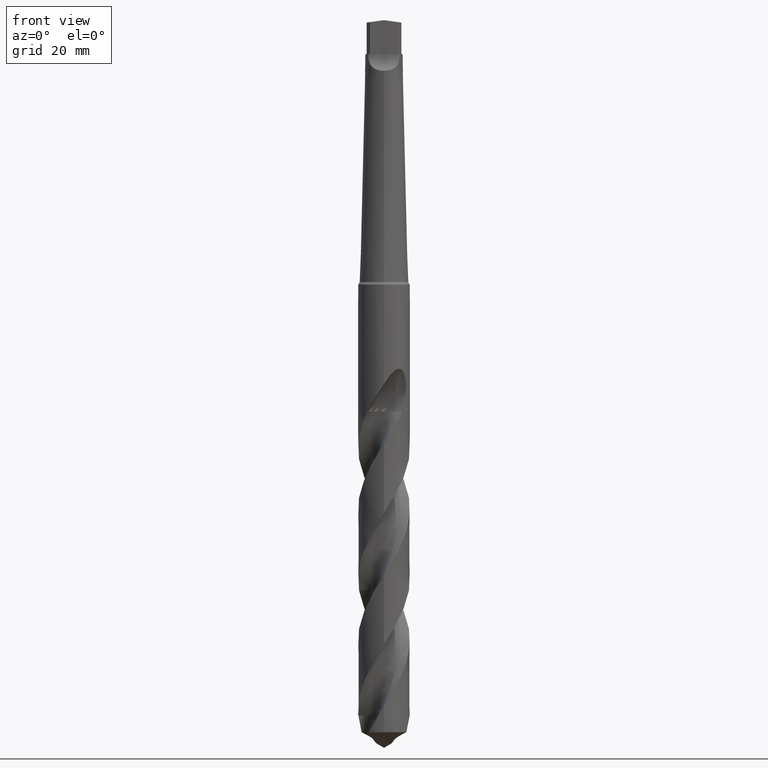
[diagram: clean part render]
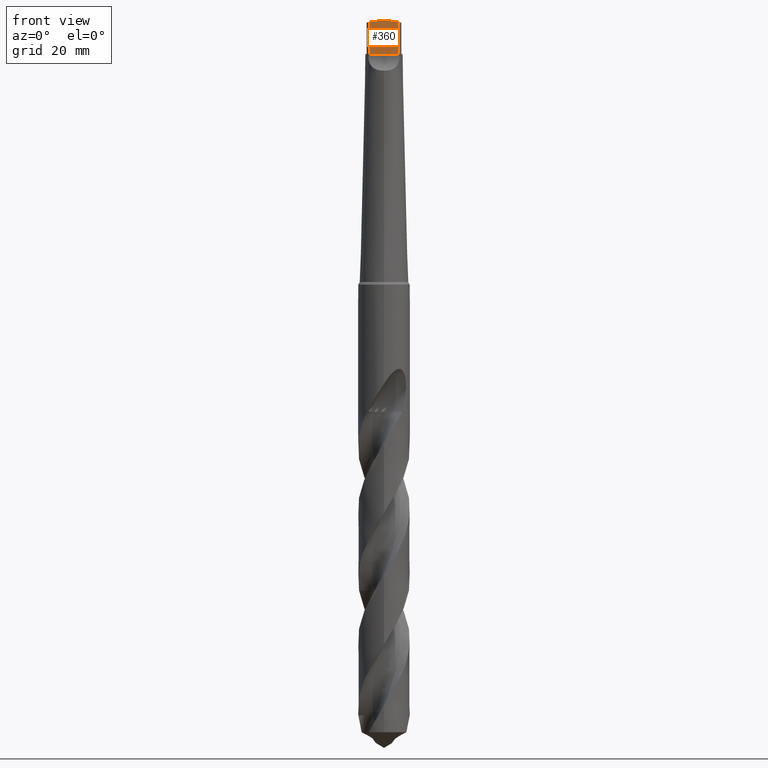
[diagram: same view with one face highlighted and labeled with its STEP entity id]
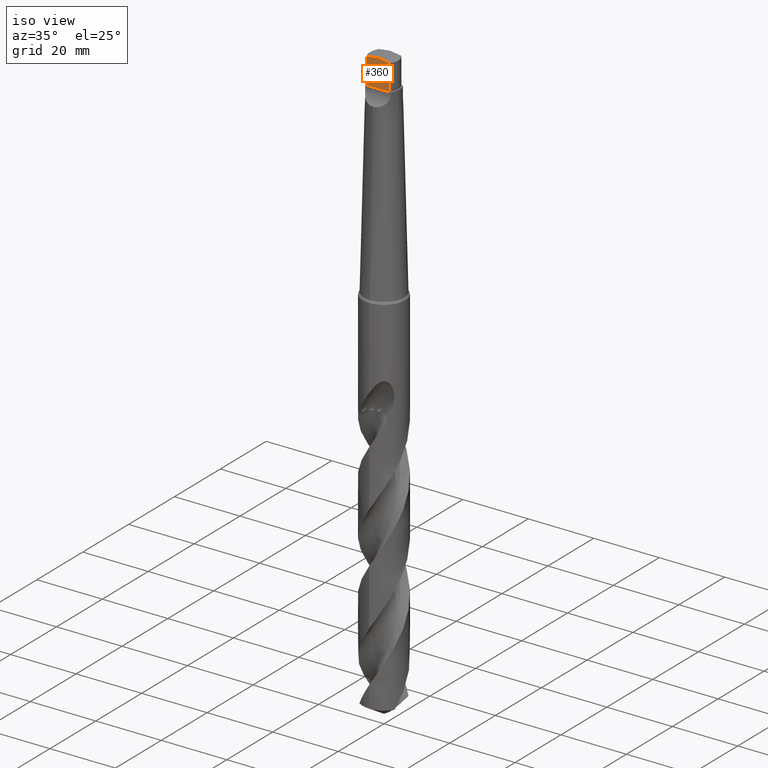
[diagram: same view with one face highlighted and labeled with its STEP entity id]
A machine part, front view. The second image highlights one B-rep face of the part: STEP entity #360.
A second angle (iso view) of the same face is appended — the face is thin or edge-on in the first view.
In plain terms, the highlighted planar face has unit normal (0, 1, 0).
Its self-contained STEP definition (entity closure, byte-faithful):
#296=EDGE_CURVE('',#680,#616,#799,.T.);
#342=VERTEX_POINT('',#849);
#360=ADVANCED_FACE('',(#868),#869,.F.);
#366=EDGE_CURVE('',#744,#680,#876,.T.);
#448=EDGE_CURVE('',#736,#342,#969,.T.);
#478=EDGE_CURVE('',#342,#616,#1001,.T.);
#590=EDGE_CURVE('',#736,#744,#1124,.T.);
#616=VERTEX_POINT('',#1151);
#680=VERTEX_POINT('',#1221);
#736=VERTEX_POINT('',#1282);
#744=VERTEX_POINT('',#1291);
#799=LINE('',#1807,#1808);
#849=CARTESIAN_POINT('',(-1.4210854715202E-013,-2.6,62.0));
#868=FACE_OUTER_BOUND('',#2887,.T.);
#869=PLANE('',#2888);
#876=LINE('',#2896,#2897);
#969=LINE('',#3613,#3614);
#1001=LINE('',#4157,#4158);
#1124=LINE('',#4504,#4505);
#1151=CARTESIAN_POINT('',(-3.48747759849436,-2.6,61.5098669873017));
#1221=CARTESIAN_POINT('',(-3.48747759849436,-2.6,53.5));
#1282=CARTESIAN_POINT('',(3.48747759849436,-2.6,61.5098669873017));
#1291=CARTESIAN_POINT('',(3.48747759849436,-2.6,53.5));
#1807=CARTESIAN_POINT('',(-3.48747759849436,-2.6,57.75));
#1808=VECTOR('',#6958,1.0);
#2887=EDGE_LOOP('',(#7029,#7030,#7031,#7032,#7033));
#2888=AXIS2_PLACEMENT_3D('',#7034,#7035,#7036);
#2896=CARTESIAN_POINT('',(12.065,-2.6,53.5));
#2897=VECTOR('',#7045,1.0);
#3613=CARTESIAN_POINT('',(56.0147884085635,-2.6,54.1276348813826));
#3614=VECTOR('',#7166,1.0);
#4157=CARTESIAN_POINT('',(-44.1834772278156,-2.6,55.7904172303486));
#4158=VECTOR('',#7187,1.0);
#4504=CARTESIAN_POINT('',(3.48747759849436,-2.6,57.75));
#4505=VECTOR('',#7331,1.0);
#6958=DIRECTION('',(-0.0,-0.0,1.0));
#7029=ORIENTED_EDGE('',*,*,#478,.T.);
#7030=ORIENTED_EDGE('',*,*,#296,.F.);
#7031=ORIENTED_EDGE('',*,*,#366,.F.);
#7032=ORIENTED_EDGE('',*,*,#590,.F.);
#7033=ORIENTED_EDGE('',*,*,#448,.T.);
#7034=CARTESIAN_POINT('',(12.065,-2.6,53.5));
#7035=DIRECTION('',(0.0,1.0,0.0));
#7036=DIRECTION('',(0.0,0.0,-1.0));
#7045=DIRECTION('',(-1.0,0.0,0.0));
#7166=DIRECTION('',(-0.99026806874157,0.0,0.139173100960067));
#7187=DIRECTION('',(-0.99026806874157,0.0,-0.139173100960067));
#7331=DIRECTION('',(0.0,0.0,-1.0));